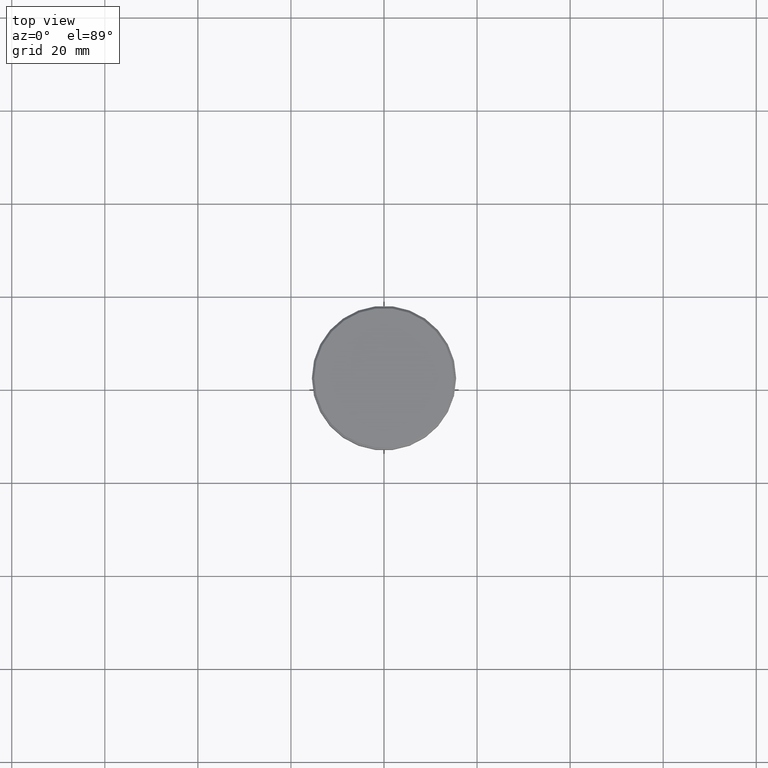
[diagram: clean part render]
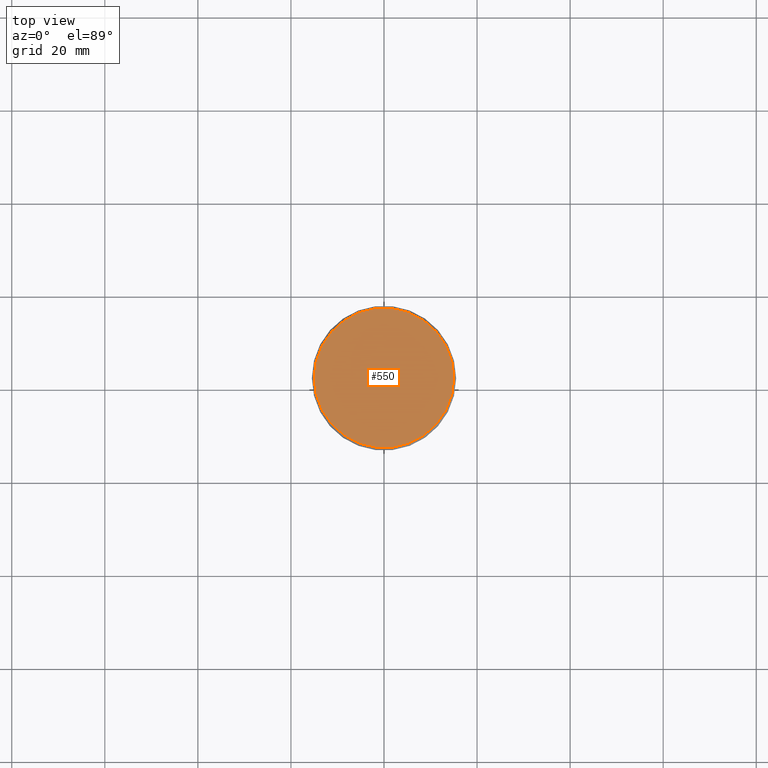
[diagram: same view with one face highlighted and labeled with its STEP entity id]
A machine part, top view. The second image highlights one B-rep face of the part: STEP entity #550.
In plain terms, the highlighted planar face has unit normal (0, -0, 1).
Its self-contained STEP definition (entity closure, byte-faithful):
#2 = EDGE_CURVE ( 'NONE', #34, #260, #380, .T. ) ;
#6 = ORIENTED_EDGE ( 'NONE', *, *, #667, .T. ) ;
#13 = ORIENTED_EDGE ( 'NONE', *, *, #2, .T. ) ;
#34 = VERTEX_POINT ( 'NONE', #616 ) ;
#84 = CIRCLE ( 'NONE', #857, 15.00000000000001421 ) ;
#91 = CARTESIAN_POINT ( 'NONE',  ( 0.000000000000000000, 0.000000000000000000, 0.000000000000000000 ) ) ;
#126 = DIRECTION ( 'NONE',  ( 1.000000000000000000, 0.000000000000000000, 0.000000000000000000 ) ) ;
#146 = DIRECTION ( 'NONE',  ( -0.000000000000000000, -0.000000000000000000, 1.000000000000000000 ) ) ;
#187 = DIRECTION ( 'NONE',  ( 0.000000000000000000, -0.000000000000000000, 1.000000000000000000 ) ) ;
#260 = VERTEX_POINT ( 'NONE', #793 ) ;
#282 = PLANE ( 'NONE',  #1114 ) ;
#380 = CIRCLE ( 'NONE', #670, 15.00000000000001421 ) ;
#550 = ADVANCED_FACE ( 'NONE', ( #657 ), #282, .T. ) ;
#578 = EDGE_LOOP ( 'NONE', ( #6, #13 ) ) ;
#603 = CARTESIAN_POINT ( 'NONE',  ( 0.000000000000000000, 0.000000000000000000, 0.000000000000000000 ) ) ;
#616 = CARTESIAN_POINT ( 'NONE',  ( 15.00000000000001421, 1.867586368699714559E-15, 0.000000000000000000 ) ) ;
#657 = FACE_OUTER_BOUND ( 'NONE', #578, .T. ) ;
#667 = EDGE_CURVE ( 'NONE', #260, #34, #84, .T. ) ;
#670 = AXIS2_PLACEMENT_3D ( 'NONE', #603, #963, #1064 ) ;
#682 = CARTESIAN_POINT ( 'NONE',  ( 0.000000000000000000, 0.000000000000000000, 0.000000000000000000 ) ) ;
#793 = CARTESIAN_POINT ( 'NONE',  ( -15.00000000000001421, 0.000000000000000000, 0.000000000000000000 ) ) ;
#857 = AXIS2_PLACEMENT_3D ( 'NONE', #682, #146, #126 ) ;
#963 = DIRECTION ( 'NONE',  ( -0.000000000000000000, -0.000000000000000000, 1.000000000000000000 ) ) ;
#1004 = DIRECTION ( 'NONE',  ( 1.000000000000000000, 0.000000000000000000, 0.000000000000000000 ) ) ;
#1064 = DIRECTION ( 'NONE',  ( 1.000000000000000000, 0.000000000000000000, 0.000000000000000000 ) ) ;
#1114 = AXIS2_PLACEMENT_3D ( 'NONE', #91, #187, #1004 ) ;